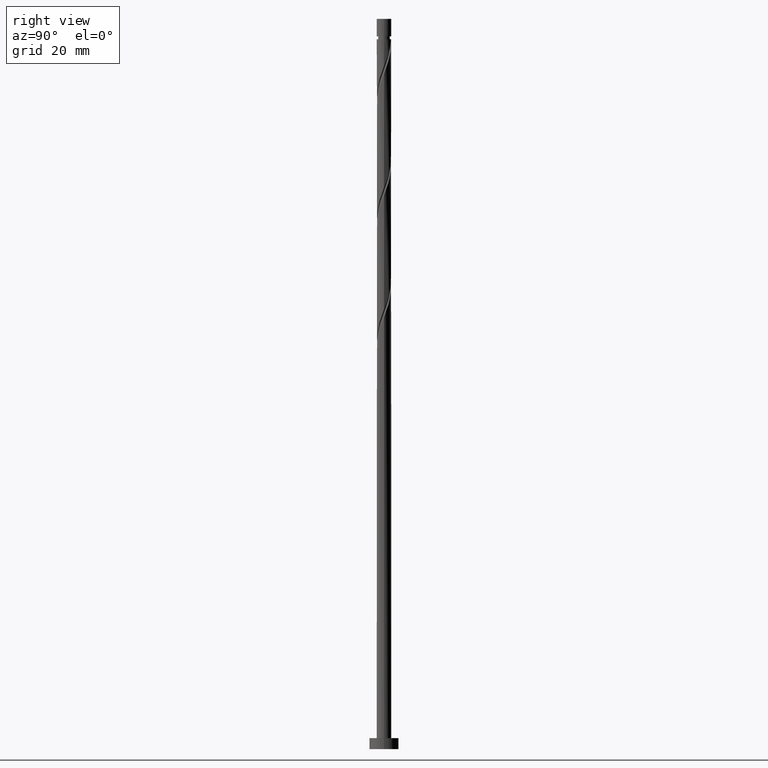
[diagram: clean part render]
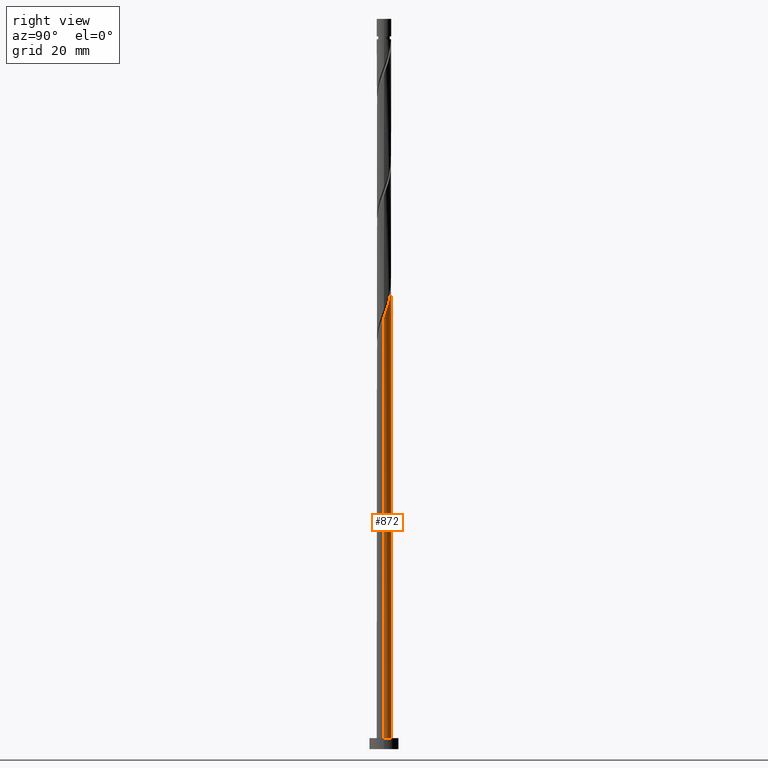
[diagram: same view with one face highlighted and labeled with its STEP entity id]
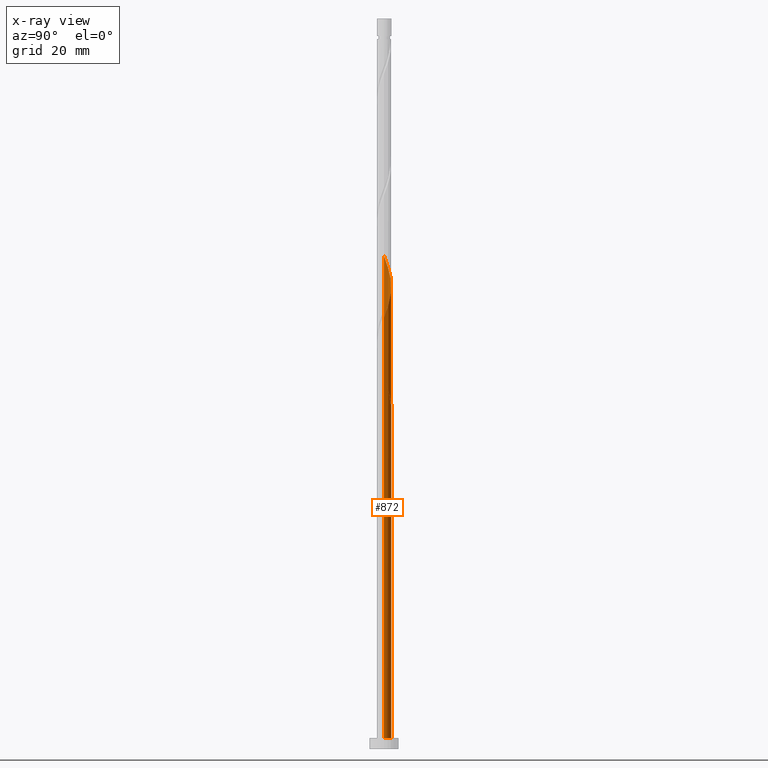
[diagram: x-ray of the same camera — body ghosted, the highlighted face saturated]
A machine part, right view. The second image highlights one B-rep face of the part: STEP entity #872.
The next image is the same camera in x-ray: the body ghosted, the highlighted face saturated — about 0% of this face is hidden behind the body in this view.
In plain terms, the highlighted cylindrical surface (edge-blend (fillet) strip) has radius 2 mm, axis along (-0, -0, -1).
Its self-contained STEP definition (entity closure, byte-faithful):
#6 = AXIS2_PLACEMENT_3D ( 'NONE', #531, #281, #1214 ) ;
#7 = CARTESIAN_POINT ( 'NONE',  ( -1.498412303996174977, 1.324673758792282330, 99.96302904697068925 ) ) ;
#43 = CARTESIAN_POINT ( 'NONE',  ( -0.8917189533347239516, 1.790205940182200139, 95.79636238030403206 ) ) ;
#54 = CARTESIAN_POINT ( 'NONE',  ( -1.812764992401017849, 0.8849929959097672105, 99.26858460252626060 ) ) ;
#89 = CARTESIAN_POINT ( 'NONE',  ( 1.907602967534735017, 0.6560338701139446504, 120.1019179358595750 ) ) ;
#97 = CARTESIAN_POINT ( 'NONE',  ( -2.000000000000002220, 0.06148390331535456832, 134.8474098148436155 ) ) ;
#104 = CARTESIAN_POINT ( 'NONE',  ( -2.000000000000000000, 0.000000000000000000, 3.000000000000000000 ) ) ;
#162 = CARTESIAN_POINT ( 'NONE',  ( -0.3979949748426484524, 1.960000000000002629, 94.40747349141514633 ) ) ;
#202 = CARTESIAN_POINT ( 'NONE',  ( -0.3979949748426484524, 1.960000000000002185, 127.7408068247484749 ) ) ;
#227 = VERTEX_POINT ( 'NONE', #162 ) ;
#246 = CARTESIAN_POINT ( 'NONE',  ( 2.000000000000000000, 2.449293598294706414E-16, 3.000000000000000000 ) ) ;
#281 = DIRECTION ( 'NONE',  ( 0.000000000000000000, 0.000000000000000000, 1.000000000000000000 ) ) ;
#294 = CARTESIAN_POINT ( 'NONE',  ( -1.907602967534732574, 0.6560338701139448725, 102.0463623803040463 ) ) ;
#308 = CARTESIAN_POINT ( 'NONE',  ( -1.959999999999999964, 0.3979949748426486744, 102.7408068247484749 ) ) ;
#337 = CARTESIAN_POINT ( 'NONE',  ( -1.521943481029064404, 1.324015695162690021, 97.87969571363738908 ) ) ;
#347 = CARTESIAN_POINT ( 'NONE',  ( -1.667354236715041571, 1.104504345536228227, 131.9074734914151463 ) ) ;
#354 = DIRECTION ( 'NONE',  ( 0.000000000000000000, -1.734723475976809303E-14, -1.000000000000000000 ) ) ;
#360 =( BOUNDED_CURVE ( )  B_SPLINE_CURVE ( 2, ( #1659, #1644, #308, #294, #840, #1513, #7, #833, #1627, #1356, #563, #1337, #1222, #1205, #1239 ),
 .UNSPECIFIED., .F., .T. ) 
 B_SPLINE_CURVE_WITH_KNOTS ( ( 3, 2, 2, 2, 2, 2, 2, 3 ),
 ( 0.9295317669814463502, 0.9375000000000000000, 0.9479166666666666297, 0.9583333333333333703, 0.9687500000000000000, 0.9791666666666666297, 0.9895833333333333703, 1.000000000000000000 ),
 .UNSPECIFIED. ) 
 CURVE ( )  GEOMETRIC_REPRESENTATION_ITEM ( )  RATIONAL_B_SPLINE_CURVE ( ( 0.9062941362546529378, 0.9031415850403572421, 0.9090909090909328194, 0.9013135103398510761, 0.9090909090909328194, 0.9013135103398510761, 0.9090909090909328194, 0.9013135103398510761, 0.9090909090909328194, 0.9013135103398510761, 0.9090909090909328194, 0.9013135103398510761, 0.9090909090909328194, 0.9013135103398510761, 0.9090909090909328194 ) ) 
 REPRESENTATION_ITEM ( '' )  );
#393 = CARTESIAN_POINT ( 'NONE',  ( -1.996223298870952290, 0.1228517034671591929, 134.6852512691929178 ) ) ;
#400 = CARTESIAN_POINT ( 'NONE',  ( -1.996223298870952290, 0.1228517034671591929, 101.3519179358596176 ) ) ;
#430 = LINE ( 'NONE', #827, #1352 ) ;
#435 = LINE ( 'NONE', #1106, #1504 ) ;
#445 = EDGE_CURVE ( 'NONE', #528, #1318, #1110, .T. ) ;
#465 = CARTESIAN_POINT ( 'NONE',  ( 0.3856594865056713894, 1.980049565276634782, 125.6574734914151463 ) ) ;
#470 = EDGE_CURVE ( 'NONE', #928, #633, #430, .T. ) ;
#482 = CARTESIAN_POINT ( 'NONE',  ( 0.1228517034671604141, 1.996223298870952290, 126.3519179358595892 ) ) ;
#497 = CARTESIAN_POINT ( 'NONE',  ( 1.790205940182200361, 0.8917189533347230634, 120.7963623803040463 ) ) ;
#528 = VERTEX_POINT ( 'NONE', #736 ) ;
#531 = CARTESIAN_POINT ( 'NONE',  ( 0.000000000000000000, 0.000000000000000000, 3.000000000000000000 ) ) ;
#532 = CARTESIAN_POINT ( 'NONE',  ( -1.812764992401017849, 0.8849929959097672105, 132.6019179358596034 ) ) ;
#556 = DIRECTION ( 'NONE',  ( -0.000000000000000000, -0.000000000000000000, -1.000000000000000000 ) ) ;
#563 = CARTESIAN_POINT ( 'NONE',  ( -0.6353262412077174126, 1.896407278838823762, 97.18525126919288937 ) ) ;
#583 = DIRECTION ( 'NONE',  ( -0.000000000000000000, -0.000000000000000000, -1.000000000000000000 ) ) ;
#590 = CARTESIAN_POINT ( 'NONE',  ( -1.896407278838826205, 0.6353262412077189669, 99.96302904697071767 ) ) ;
#591 = CARTESIAN_POINT ( 'NONE',  ( 1.498412303996178530, 1.324673758792282330, 122.1852512691929320 ) ) ;
#595 = EDGE_CURVE ( 'NONE', #227, #1462, #1591, .T. ) ;
#633 = VERTEX_POINT ( 'NONE', #246 ) ;
#641 = ORIENTED_EDGE ( 'NONE', *, *, #1449, .F. ) ;
#670 = VERTEX_POINT ( 'NONE', #104 ) ;
#736 = CARTESIAN_POINT ( 'NONE',  ( -2.000000000000002220, 4.067429368664605239E-15, 135.0105735028717504 ) ) ;
#738 = CARTESIAN_POINT ( 'NONE',  ( -0.6560338701139450945, 1.907602967534734351, 128.4352512691929178 ) ) ;
#750 = CARTESIAN_POINT ( 'NONE',  ( 2.000000000000002220, 2.467374433197279566E-16, 118.3439068362050648 ) ) ;
#792 = ORIENTED_EDGE ( 'NONE', *, *, #1570, .F. ) ;
#807 = DIRECTION ( 'NONE',  ( -0.000000000000000000, -0.000000000000000000, -1.000000000000000000 ) ) ;
#827 = CARTESIAN_POINT ( 'NONE',  ( 2.000000000000000000, 2.449293598294706414E-16, 200.0000000000000000 ) ) ;
#833 = CARTESIAN_POINT ( 'NONE',  ( -1.324015695162687134, 1.521943481029063072, 99.26858460252623217 ) ) ;
#840 = CARTESIAN_POINT ( 'NONE',  ( -1.790205940182196809, 0.8917189533347233965, 101.3519179358595892 ) ) ;
#853 = FACE_OUTER_BOUND ( 'NONE', #1420, .T. ) ;
#872 = ADVANCED_FACE ( 'NONE', ( #853 ), #1382, .T. ) ;
#883 = CARTESIAN_POINT ( 'NONE',  ( -1.324673758792283884, 1.498412303996177641, 130.5185846025262038 ) ) ;
#899 = CARTESIAN_POINT ( 'NONE',  ( -2.000000000000002665, -1.525286013249227260E-15, 101.6772401695384360 ) ) ;
#928 = VERTEX_POINT ( 'NONE', #750 ) ;
#948 = EDGE_CURVE ( 'NONE', #227, #1710, #1050, .T. ) ;
#979 = CARTESIAN_POINT ( 'NONE',  ( -2.000000000000000000, 0.000000000000000000, 200.0000000000000000 ) ) ;
#1005 = CARTESIAN_POINT ( 'NONE',  ( 1.324015695162691353, 1.521943481029063294, 122.8796957136373891 ) ) ;
#1013 = CARTESIAN_POINT ( 'NONE',  ( -1.127404036555502476, 1.672808912829665262, 129.8241401580818035 ) ) ;
#1028 = CARTESIAN_POINT ( 'NONE',  ( 1.104504345536229115, 1.667354236715041127, 123.5741401580818177 ) ) ;
#1050 = CIRCLE ( 'NONE', #1266, 2.000000000000000000 ) ;
#1064 = CARTESIAN_POINT ( 'NONE',  ( -2.000000000000002220, 4.067429368664605239E-15, 135.0105735028717504 ) ) ;
#1065 = EDGE_CURVE ( 'NONE', #633, #670, #1534, .T. ) ;
#1106 = CARTESIAN_POINT ( 'NONE',  ( -2.000000000000000000, 0.000000000000000000, 200.0000000000000000 ) ) ;
#1110 = LINE ( 'NONE', #979, #1701 ) ;
#1123 = ORIENTED_EDGE ( 'NONE', *, *, #470, .T. ) ;
#1131 = CARTESIAN_POINT ( 'NONE',  ( -1.667354236715041571, 1.104504345536228227, 98.57414015808181773 ) ) ;
#1185 = CARTESIAN_POINT ( 'NONE',  ( -1.896407278838826205, 0.6353262412077189669, 133.2963623803040321 ) ) ;
#1205 = CARTESIAN_POINT ( 'NONE',  ( 0.1399560795713527817, 2.012397032465267355, 95.10191793585958919 ) ) ;
#1214 = DIRECTION ( 'NONE',  ( 1.000000000000000000, 0.000000000000000000, 0.000000000000000000 ) ) ;
#1222 = CARTESIAN_POINT ( 'NONE',  ( -0.1228517034671583186, 1.996223298870949847, 95.79636238030401785 ) ) ;
#1223 = ORIENTED_EDGE ( 'NONE', *, *, #948, .T. ) ;
#1239 = CARTESIAN_POINT ( 'NONE',  ( 0.3979949748426492295, 1.960000000000000409, 94.40747349141514633 ) ) ;
#1240 = CARTESIAN_POINT ( 'NONE',  ( -0.6560338701139450945, 1.907602967534734351, 95.10191793585958919 ) ) ;
#1251 = CARTESIAN_POINT ( 'NONE',  ( 0.8849929959097679877, 1.812764992401017405, 124.2685846025262464 ) ) ;
#1266 = AXIS2_PLACEMENT_3D ( 'NONE', #1283, #354, #1702 ) ;
#1270 = CARTESIAN_POINT ( 'NONE',  ( -0.8917189533347239516, 1.790205940182200139, 129.1296957136373464 ) ) ;
#1278 = CARTESIAN_POINT ( 'NONE',  ( -0.1399560795713506445, 2.012397032465270019, 127.0463623803040321 ) ) ;
#1283 = CARTESIAN_POINT ( 'NONE',  ( 0.000000000000000000, 0.000000000000000000, 94.40747349141517475 ) ) ;
#1288 = CARTESIAN_POINT ( 'NONE',  ( 2.000000000000003553, 0.2010075630518346479, 118.8773332053942937 ) ) ;
#1296 = ORIENTED_EDGE ( 'NONE', *, *, #595, .F. ) ;
#1311 = ORIENTED_EDGE ( 'NONE', *, *, #1065, .T. ) ;
#1315 = CARTESIAN_POINT ( 'NONE',  ( -2.000000000000002220, 0.06148390331534323017, 101.5140764815102727 ) ) ;
#1318 = VERTEX_POINT ( 'NONE', #1575 ) ;
#1326 = AXIS2_PLACEMENT_3D ( 'NONE', #1373, #1405, #1666 ) ;
#1331 = CARTESIAN_POINT ( 'NONE',  ( -2.000000000000002665, -1.525286013249227260E-15, 101.6772401695384360 ) ) ;
#1337 = CARTESIAN_POINT ( 'NONE',  ( -0.3856594865056695021, 1.980049565276632562, 96.49080682474848913 ) ) ;
#1352 = VECTOR ( 'NONE', #583, 1000.000000000000000 ) ;
#1356 = CARTESIAN_POINT ( 'NONE',  ( -0.8849929959097657672, 1.812764992401016073, 97.87969571363737487 ) ) ;
#1373 = CARTESIAN_POINT ( 'NONE',  ( 0.000000000000000000, 0.000000000000000000, 200.0000000000000000 ) ) ;
#1382 = CYLINDRICAL_SURFACE ( 'NONE', #1326, 2.000000000000000000 ) ;
#1385 = CARTESIAN_POINT ( 'NONE',  ( 0.3979949748426492295, 1.960000000000000409, 94.40747349141514633 ) ) ;
#1389 =( BOUNDED_CURVE ( )  B_SPLINE_CURVE ( 2, ( #1708, #1288, #1679, #89, #497, #1411, #591, #1005, #1028, #1251, #1553, #465, #482, #1278, #202, #738, #1270, #1013, #883, #1560, #347, #532, #1185, #1478, #393, #97, #1064 ),
 .UNSPECIFIED., .F., .T. ) 
 B_SPLINE_CURVE_WITH_KNOTS ( ( 3, 2, 2, 2, 2, 2, 2, 2, 2, 2, 2, 2, 2, 3 ),
 ( 0.1795317669814460448, 0.1875000000000000000, 0.1979166666666666297, 0.2083333333333333703, 0.2187500000000000000, 0.2291666666666666297, 0.2395833333333333703, 0.2500000000000000000, 0.2604166666666666297, 0.2708333333333333703, 0.2812500000000000000, 0.2916666666666666297, 0.3020833333333333703, 0.3045317669814460171 ),
 .UNSPECIFIED. ) 
 CURVE ( )  GEOMETRIC_REPRESENTATION_ITEM ( )  RATIONAL_B_SPLINE_CURVE ( ( 0.9062941362546574897, 0.9031415850403614609, 0.9090909090909370383, 0.9013135103398555170, 0.9090909090909370383, 0.9013135103398555170, 0.9090909090909370383, 0.9013135103398555170, 0.9090909090909370383, 0.9013135103398555170, 0.9090909090909370383, 0.9013135103398555170, 0.9090909090909370383, 0.9013135103398555170, 0.9090909090909370383, 0.9013135103398555170, 0.9090909090909370383, 0.9013135103398555170, 0.9090909090909370383, 0.9013135103398555170, 0.9090909090909370383, 0.9013135103398555170, 0.9090909090909370383, 0.9013135103398555170, 0.9090909090909370383, 0.9072628343904309833, 0.9062941362546574897 ) ) 
 REPRESENTATION_ITEM ( '' )  );
#1405 = DIRECTION ( 'NONE',  ( -0.000000000000000000, -0.000000000000000000, -1.000000000000000000 ) ) ;
#1411 = CARTESIAN_POINT ( 'NONE',  ( 1.672808912829665484, 1.127404036555501810, 121.4908068247484607 ) ) ;
#1415 = ORIENTED_EDGE ( 'NONE', *, *, #445, .F. ) ;
#1420 = EDGE_LOOP ( 'NONE', ( #641, #1123, #1311, #792, #1296, #1223, #1440, #1415 ) ) ;
#1440 = ORIENTED_EDGE ( 'NONE', *, *, #1578, .F. ) ;
#1449 = EDGE_CURVE ( 'NONE', #928, #528, #1389, .T. ) ;
#1462 = VERTEX_POINT ( 'NONE', #1331 ) ;
#1478 = CARTESIAN_POINT ( 'NONE',  ( -1.980049565276634782, 0.3856594865056702792, 133.9908068247484891 ) ) ;
#1504 = VECTOR ( 'NONE', #807, 1000.000000000000000 ) ;
#1513 = CARTESIAN_POINT ( 'NONE',  ( -1.672808912829662820, 1.127404036555501810, 100.6574734914151179 ) ) ;
#1529 = CARTESIAN_POINT ( 'NONE',  ( -0.3979949748426484524, 1.960000000000002629, 94.40747349141514633 ) ) ;
#1534 = CIRCLE ( 'NONE', #6, 2.000000000000000000 ) ;
#1541 = CARTESIAN_POINT ( 'NONE',  ( -1.324673758792283884, 1.498412303996177641, 97.18525126919294621 ) ) ;
#1552 = CARTESIAN_POINT ( 'NONE',  ( -1.127404036555502476, 1.672808912829665262, 96.49080682474846071 ) ) ;
#1553 = CARTESIAN_POINT ( 'NONE',  ( 0.6353262412077195220, 1.896407278838825761, 124.9630290469707035 ) ) ;
#1560 = CARTESIAN_POINT ( 'NONE',  ( -1.521943481029064404, 1.324015695162690021, 131.2130290469707177 ) ) ;
#1570 = EDGE_CURVE ( 'NONE', #1462, #670, #435, .T. ) ;
#1575 = CARTESIAN_POINT ( 'NONE',  ( -2.000000000000000444, 2.415036187644621267E-15, 103.8043734799585280 ) ) ;
#1578 = EDGE_CURVE ( 'NONE', #1318, #1710, #360, .T. ) ;
#1591 =( BOUNDED_CURVE ( )  B_SPLINE_CURVE ( 2, ( #1529, #1240, #43, #1552, #1541, #337, #1131, #54, #590, #1706, #400, #1315, #899 ),
 .UNSPECIFIED., .F., .T. ) 
 B_SPLINE_CURVE_WITH_KNOTS ( ( 3, 2, 2, 2, 2, 2, 3 ),
 ( 0.000000000000000000, 0.01041666666666662966, 0.02083333333333337034, 0.03125000000000000000, 0.04166666666666662966, 0.05208333333333337034, 0.05453176698144646811 ),
 .UNSPECIFIED. ) 
 CURVE ( )  GEOMETRIC_REPRESENTATION_ITEM ( )  RATIONAL_B_SPLINE_CURVE ( ( 0.9090909090909370383, 0.9013135103398555170, 0.9090909090909370383, 0.9013135103398555170, 0.9090909090909370383, 0.9013135103398555170, 0.9090909090909370383, 0.9013135103398555170, 0.9090909090909370383, 0.9013135103398555170, 0.9090909090909370383, 0.9072628343904307613, 0.9062941362546572677 ) ) 
 REPRESENTATION_ITEM ( '' )  );
#1627 = CARTESIAN_POINT ( 'NONE',  ( -1.104504345536226673, 1.667354236715039129, 98.57414015808180352 ) ) ;
#1644 = CARTESIAN_POINT ( 'NONE',  ( -2.000000000000000444, 0.2010075630518442236, 103.2709471107692991 ) ) ;
#1659 = CARTESIAN_POINT ( 'NONE',  ( -2.000000000000000444, 2.415036187644621267E-15, 103.8043734799585280 ) ) ;
#1666 = DIRECTION ( 'NONE',  ( -1.000000000000000000, 0.000000000000000000, 0.000000000000000000 ) ) ;
#1679 = CARTESIAN_POINT ( 'NONE',  ( 1.960000000000002185, 0.3979949748426485634, 119.4074734914151321 ) ) ;
#1701 = VECTOR ( 'NONE', #556, 1000.000000000000000 ) ;
#1702 = DIRECTION ( 'NONE',  ( 0.000000000000000000, 1.000000000000000000, -2.081668171172168513E-14 ) ) ;
#1706 = CARTESIAN_POINT ( 'NONE',  ( -1.980049565276634782, 0.3856594865056702792, 100.6574734914151605 ) ) ;
#1708 = CARTESIAN_POINT ( 'NONE',  ( 2.000000000000002220, 2.467374433197279566E-16, 118.3439068362050648 ) ) ;
#1710 = VERTEX_POINT ( 'NONE', #1385 ) ;